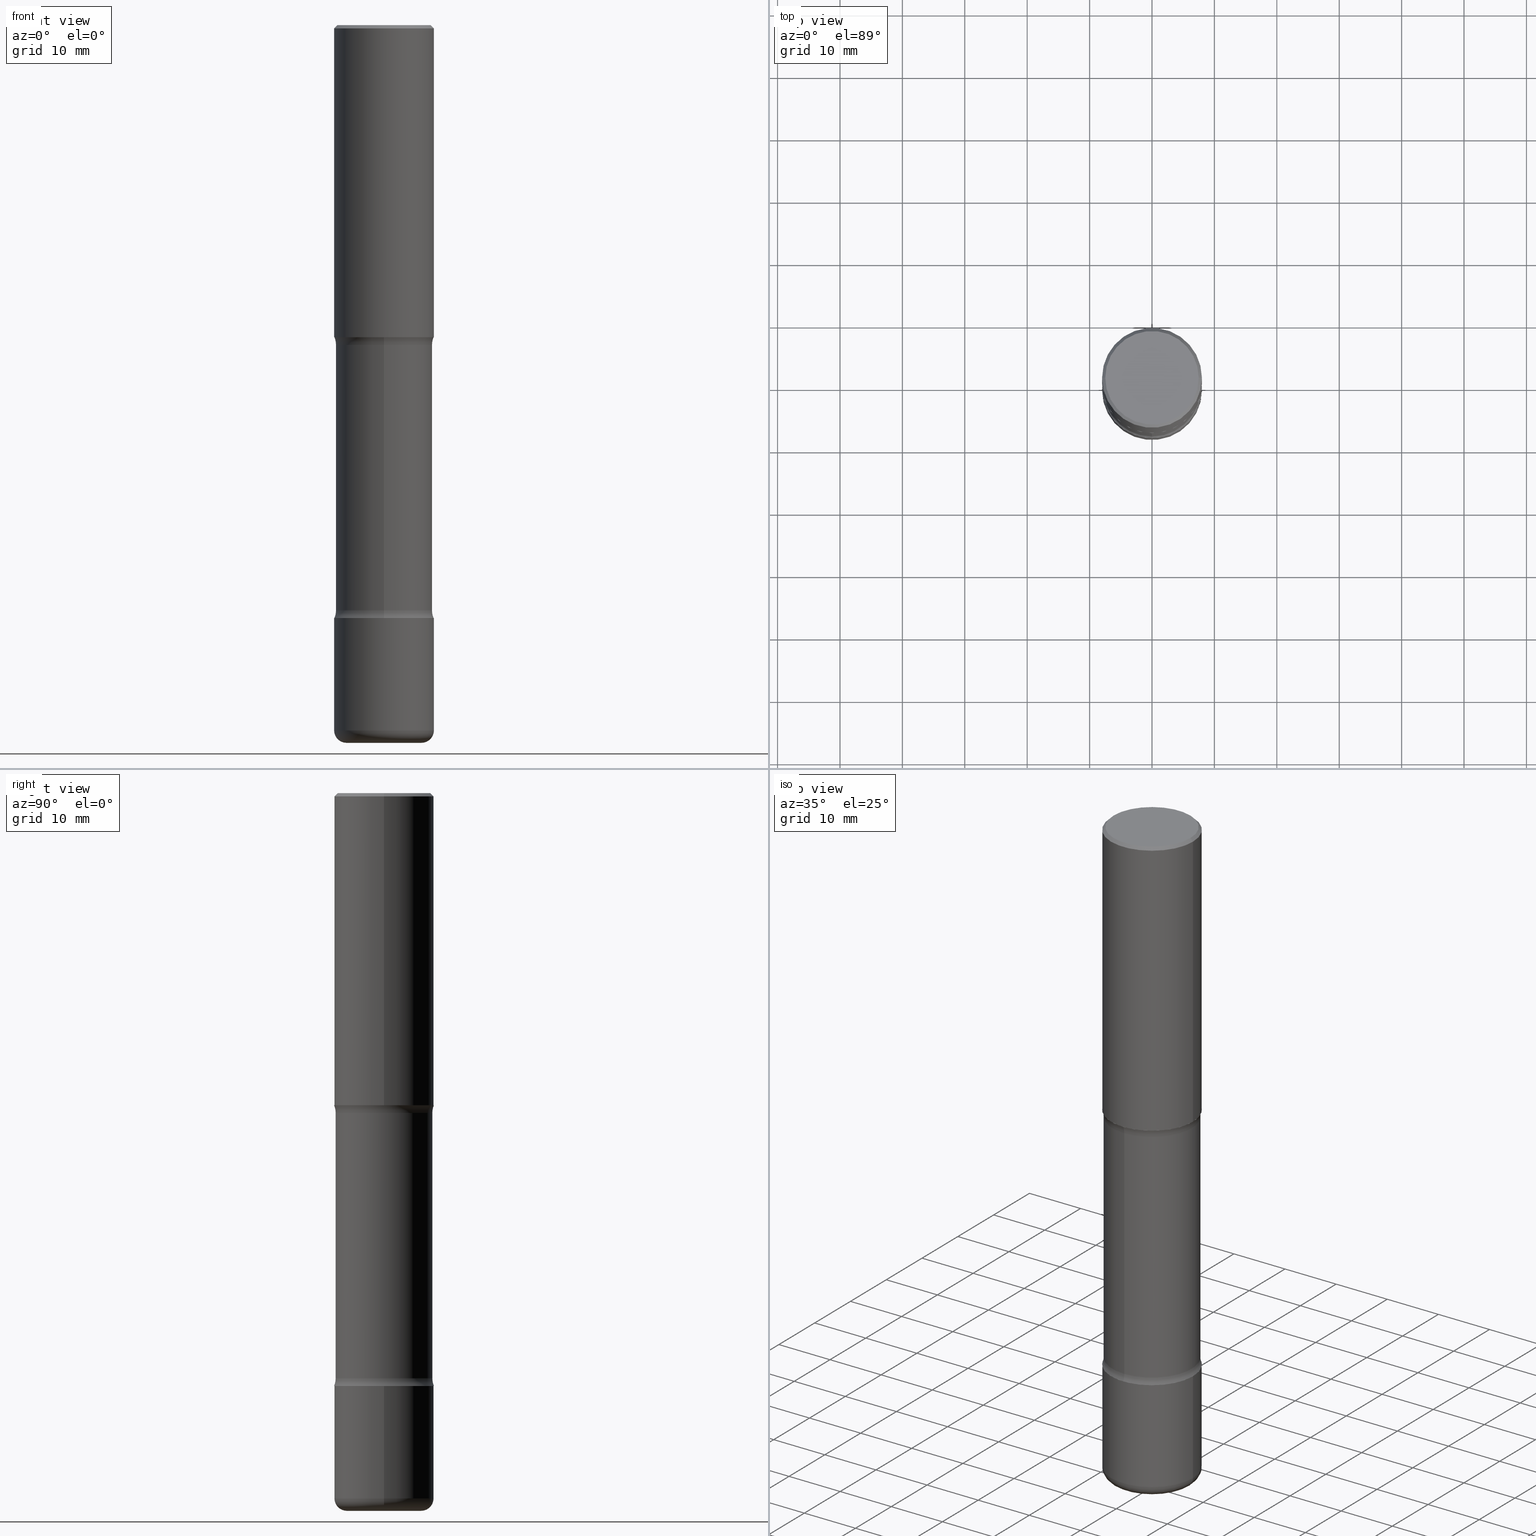
[diagram: canonical four-view strip — front | top / right | iso, engineering-drawing reading convention]
A machine part, canonical four-view strip (front | top / right | iso — engineering-drawing reading convention). The complete STEP part file that produces these views, byte-faithful:
ISO-10303-21;
HEADER;
FILE_DESCRIPTION (( 'STEP AP203' ),
    '1' );
FILE_NAME ('46832.STEP',
    '2024-03-02T05:42:02',
    ( '' ),
    ( '' ),
    'SwSTEP 2.0',
    'SolidWorks 2023',
    '' );
FILE_SCHEMA (( 'CONFIG_CONTROL_DESIGN' ));
ENDSEC;

DATA;
#1 = CARTESIAN_POINT ( 'NONE',  ( 1.087964617183705593E-28, -1.553325132837927055E-14, -4.448900000000000077 ) ) ;
#2 = VECTOR ( 'NONE', #185, 39.37007874015748143 ) ;
#3 =( CONVERSION_BASED_UNIT ( 'INCH', #124 ) LENGTH_UNIT ( ) NAMED_UNIT ( #377 ) );
#4 = PRODUCT_DEFINITION ( 'UNKNOWN', '', #447, #550 ) ;
#5 = DIRECTION ( 'NONE',  ( 6.982962677686264344E-15, 1.000000000000000000, -3.469564049740290403E-15 ) ) ;
#6 = CARTESIAN_POINT ( 'NONE',  ( 0.3149500000000001743, -9.072265110850023156E-15, -1.968500000000000139 ) ) ;
#7 = CARTESIAN_POINT ( 'NONE',  ( -3.131554243005659264E-46, 4.471029511141341874E-32, 1.280553747030123384E-17 ) ) ;
#8 = DIRECTION ( 'NONE',  ( 1.000000000000000000, -6.860497997771530774E-15, 4.841913026395534193E-29 ) ) ;
#9 = VECTOR ( 'NONE', #243, 39.37007874015748143 ) ;
#10 = DIRECTION ( 'NONE',  ( -0.7071067811865471286, 2.468850131082252722E-15, -0.7071067811865479058 ) ) ;
#11 = AXIS2_PLACEMENT_3D ( 'NONE', #146, #221, #319 ) ;
#12 = ORIENTED_EDGE ( 'NONE', *, *, #50, .F. ) ;
#13 = DIRECTION ( 'NONE',  ( 1.000000000000000000, -6.982962677686269866E-15, 0.000000000000000000 ) ) ;
#14 = CARTESIAN_POINT ( 'NONE',  ( -0.3149500000000002853, 2.237854346276437562E-15, -1.549218606675783797E-29 ) ) ;
#15 = PLANE ( 'NONE',  #544 ) ;
#16 = CARTESIAN_POINT ( 'NONE',  ( 9.146542428893650504E-29, -1.305883850354113594E-14, -3.740200000000000635 ) ) ;
#17 = APPROVAL_STATUS ( 'not_yet_approved' ) ;
#18 = EDGE_CURVE ( 'NONE', #405, #267, #196, .T. ) ;
#19 = ORIENTED_EDGE ( 'NONE', *, *, #95, .T. ) ;
#20 = CARTESIAN_POINT ( 'NONE',  ( 4.890937612370289799E-31, -6.982962677686315028E-17, -0.02000000000000006981 ) ) ;
#21 = DIRECTION ( 'NONE',  ( 6.982962677686265922E-15, 1.000000000000000000, -3.400504350852260021E-15 ) ) ;
#22 = TOROIDAL_SURFACE ( 'NONE', #554, 0.4300000000000000488, 0.1250000000000000278 ) ;
#23 = AXIS2_PLACEMENT_3D ( 'NONE', #26, #539, #188 ) ;
#24 = PERSON_AND_ORGANIZATION ( #349, #336 ) ;
#25 = EDGE_LOOP ( 'NONE', ( #156, #88 ) ) ;
#26 = CARTESIAN_POINT ( 'NONE',  ( 4.615694768568605168E-29, -1.954727023296045315E-14, -3.740200000000000635 ) ) ;
#27 = ORIENTED_EDGE ( 'NONE', *, *, #510, .T. ) ;
#28 = CARTESIAN_POINT ( 'NONE',  ( 0.3149499999999998967, -2.230543471175006266E-15, -0.02000000000000006981 ) ) ;
#29 = CIRCLE ( 'NONE', #346, 0.3149500000000002298 ) ;
#30 = SECURITY_CLASSIFICATION ( '', '', #351 ) ;
#31 = EDGE_LOOP ( 'NONE', ( #549, #495, #167, #34 ) ) ;
#32 = CARTESIAN_POINT ( 'NONE',  ( 4.838038961945526824E-29, -7.180209988345925109E-15, -2.017372256956274423 ) ) ;
#33 = ORIENTED_EDGE ( 'NONE', *, *, #246, .T. ) ;
#34 = ORIENTED_EDGE ( 'NONE', *, *, #69, .F. ) ;
#35 = FACE_OUTER_BOUND ( 'NONE', #530, .T. ) ;
#36 = ORIENTED_EDGE ( 'NONE', *, *, #113, .T. ) ;
#37 = EDGE_CURVE ( 'NONE', #429, #267, #220, .T. ) ;
#38 = DIRECTION ( 'NONE',  ( -2.445468806185136597E-29, 3.491481338843145583E-15, 1.000000000000000000 ) ) ;
#39 = EDGE_LOOP ( 'NONE', ( #33, #165, #400, #72 ) ) ;
#40 = CIRCLE ( 'NONE', #117, 0.3049999999999998823 ) ;
#41 = CARTESIAN_POINT ( 'NONE',  ( 2.129803616694422103E-15, 0.3049999999999842282, -4.527600000000001401 ) ) ;
#42 = PLANE ( 'NONE',  #216 ) ;
#43 = CARTESIAN_POINT ( 'NONE',  ( 0.3149500000000003963, -1.773253542371656516E-14, -4.448900000000000077 ) ) ;
#44 = CARTESIAN_POINT ( 'NONE',  ( 0.3149500000000002298, -1.525812259887842581E-14, -3.740200000000000635 ) ) ;
#45 = ADVANCED_FACE ( 'NONE', ( #492 ), #270, .T. ) ;
#46 = DIRECTION ( 'NONE',  ( 6.982962677686265922E-15, 1.000000000000000000, -3.400504350852260021E-15 ) ) ;
#47 = TOROIDAL_SURFACE ( 'NONE', #62, 0.4299999999999999378, 0.1250000000000000000 ) ;
#48 = CIRCLE ( 'NONE', #132, 0.1250000000000000278 ) ;
#49 = DIRECTION ( 'NONE',  ( 1.000000000000000000, -6.982962677686268288E-15, 0.000000000000000000 ) ) ;
#50 = EDGE_CURVE ( 'NONE', #292, #545, #468, .T. ) ;
#51 = SHAPE_DEFINITION_REPRESENTATION ( #57, #241 ) ;
#52 = VERTEX_POINT ( 'NONE', #43 ) ;
#53 = CYLINDRICAL_SURFACE ( 'NONE', #298, 0.3149500000000000077 ) ;
#54 = AXIS2_PLACEMENT_3D ( 'NONE', #339, #133, #441 ) ;
#55 = VERTEX_POINT ( 'NONE', #439 ) ;
#56 = FACE_OUTER_BOUND ( 'NONE', #67, .T. ) ;
#57 = PRODUCT_DEFINITION_SHAPE ( 'NONE', 'NONE',  #4 ) ;
#58 = ORIENTED_EDGE ( 'NONE', *, *, #526, .F. ) ;
#59 = CARTESIAN_POINT ( 'NONE',  ( -0.3149500000000003963, -1.329539698210283299E-14, -4.448900000000000077 ) ) ;
#60 = DIRECTION ( 'NONE',  ( -2.445468806185136597E-29, 3.491481338843145583E-15, 1.000000000000000000 ) ) ;
#61 = ORIENTED_EDGE ( 'NONE', *, *, #457, .F. ) ;
#62 = AXIS2_PLACEMENT_3D ( 'NONE', #369, #275, #317 ) ;
#63 = CLOSED_SHELL ( 'NONE', ( #273, #359, #264, #174, #235, #472 ) ) ;
#64 = VECTOR ( 'NONE', #150, 39.37007874015748143 ) ;
#65 = DIRECTION ( 'NONE',  ( 1.000000000000000000, -6.982962677686264344E-15, 0.000000000000000000 ) ) ;
#66 = APPROVAL_ROLE ( '' ) ;
#67 = EDGE_LOOP ( 'NONE', ( #223, #108 ) ) ;
#68 = DIRECTION ( 'NONE',  ( -1.000000000000000000, 7.105427357600995548E-15, 0.000000000000000000 ) ) ;
#69 = EDGE_CURVE ( 'NONE', #267, #405, #325, .T. ) ;
#70 = DIRECTION ( 'NONE',  ( 0.7071067811865471286, -7.319954787623254468E-15, -0.7071067811865479058 ) ) ;
#71 = FACE_OUTER_BOUND ( 'NONE', #448, .T. ) ;
#72 = ORIENTED_EDGE ( 'NONE', *, *, #335, .F. ) ;
#73 = DIRECTION ( 'NONE',  ( -2.445468806185136597E-29, 3.491481338843145583E-15, 1.000000000000000000 ) ) ;
#74 = CIRCLE ( 'NONE', #397, 0.07870000000000024198 ) ;
#75 = AXIS2_PLACEMENT_3D ( 'NONE', #517, #127, #46 ) ;
#76 = ORIENTED_EDGE ( 'NONE', *, *, #183, .F. ) ;
#77 = MANIFOLD_SOLID_BREP ( 'Body-Move/Copy2[1]', #63 ) ;
#78 = DIRECTION ( 'NONE',  ( -2.445468806185136597E-29, 3.491481338843145583E-15, 1.000000000000000000 ) ) ;
#79 = DIRECTION ( 'NONE',  ( 1.000000000000000000, -6.982962677686268288E-15, 0.000000000000000000 ) ) ;
#80 = EDGE_CURVE ( 'NONE', #204, #511, #288, .T. ) ;
#81 = EDGE_LOOP ( 'NONE', ( #362, #493, #334, #412 ) ) ;
#82 = DIRECTION ( 'NONE',  ( 1.000000000000000000, -6.982962677686267499E-15, 4.876176775795936353E-29 ) ) ;
#83 = MANIFOLD_SOLID_BREP ( 'Body-Move/Copy2[4]', #466 ) ;
#84 = CC_DESIGN_PERSON_AND_ORGANIZATION_ASSIGNMENT ( #281, #225, ( #447 ) ) ;
#85 = DIRECTION ( 'NONE',  ( 1.000000000000000000, -6.982962677686269866E-15, 0.000000000000000000 ) ) ;
#86 = CIRCLE ( 'NONE', #303, 0.1250000000000000000 ) ;
#87 = CYLINDRICAL_SURFACE ( 'NONE', #476, 0.3049999999999999378 ) ;
#88 = ORIENTED_EDGE ( 'NONE', *, *, #69, .T. ) ;
#89 = DIRECTION ( 'NONE',  ( 2.508997697352003204E-29, -3.400504350852260021E-15, -1.000000000000000000 ) ) ;
#90 = LINE ( 'NONE', #41, #164 ) ;
#91 = CC_DESIGN_APPROVAL ( #426, ( #447 ) ) ;
#92 = EDGE_CURVE ( 'NONE', #329, #204, #86, .T. ) ;
#93 = COORDINATED_UNIVERSAL_TIME_OFFSET ( 5, 0, .BEHIND. ) ;
#94 = CARTESIAN_POINT ( 'NONE',  ( 3.002673951405142333E-15, 0.4299999999999927769, -2.017372256956275756 ) ) ;
#95 = EDGE_CURVE ( 'NONE', #187, #429, #74, .T. ) ;
#96 = EDGE_LOOP ( 'NONE', ( #282, #381, #181, #445 ) ) ;
#97 = ORIENTED_EDGE ( 'NONE', *, *, #382, .T. ) ;
#98 = PRODUCT_RELATED_PRODUCT_CATEGORY ( 'detail', '', ( #147 ) ) ;
#99 = DIRECTION ( 'NONE',  ( -2.445468806185136597E-29, 3.491481338843145583E-15, 1.000000000000000000 ) ) ;
#100 = EDGE_CURVE ( 'NONE', #511, #204, #430, .T. ) ;
#101 = CIRCLE ( 'NONE', #473, 0.07870000000000024198 ) ;
#102 = APPROVAL_PERSON_ORGANIZATION ( #144, #368, #66 ) ;
#103 = ORIENTED_EDGE ( 'NONE', *, *, #212, .F. ) ;
#104 = DIRECTION ( 'NONE',  ( -2.445468806185136597E-29, 3.491481338843145583E-15, 1.000000000000000000 ) ) ;
#105 = CARTESIAN_POINT ( 'NONE',  ( 0.3149499999999998967, -2.230543471175006266E-15, -0.02000000000000006981 ) ) ;
#106 = PERSON_AND_ORGANIZATION_ROLE ( 'creator' ) ;
#107 = APPROVAL_ROLE ( '' ) ;
#108 = ORIENTED_EDGE ( 'NONE', *, *, #393, .T. ) ;
#109 = FACE_OUTER_BOUND ( 'NONE', #360, .T. ) ;
#110 = CARTESIAN_POINT ( 'NONE',  ( 9.027026849019219293E-29, -1.288820193039116093E-14, -3.691327743043727239 ) ) ;
#111 = VECTOR ( 'NONE', #70, 39.37007874015748143 ) ;
#112 = CIRCLE ( 'NONE', #143, 0.3149500000000002298 ) ;
#113 = EDGE_CURVE ( 'NONE', #507, #52, #101, .T. ) ;
#114 = DIRECTION ( 'NONE',  ( 2.508997697352003204E-29, -3.400504350852260021E-15, -1.000000000000000000 ) ) ;
#115 = ORIENTED_EDGE ( 'NONE', *, *, #457, .T. ) ;
#116 = DIRECTION ( 'NONE',  ( -2.445468806185136597E-29, 3.491481338843145583E-15, 1.000000000000000000 ) ) ;
#117 = AXIS2_PLACEMENT_3D ( 'NONE', #560, #211, #173 ) ;
#118 = ORIENTED_EDGE ( 'NONE', *, *, #95, .F. ) ;
#119 = CARTESIAN_POINT ( 'NONE',  ( 0.3149500000000000077, -2.199284095337289871E-15, 1.535751875536930130E-29 ) ) ;
#120 = DIRECTION ( 'NONE',  ( 2.508997697352003204E-29, -3.400504350852260021E-15, -1.000000000000000000 ) ) ;
#121 = AXIS2_PLACEMENT_3D ( 'NONE', #230, #485, #529 ) ;
#122 = ADVANCED_FACE ( 'NONE', ( #293 ), #414, .T. ) ;
#123 =( GEOMETRIC_REPRESENTATION_CONTEXT ( 3 ) GLOBAL_UNCERTAINTY_ASSIGNED_CONTEXT ( ( #494 ) ) GLOBAL_UNIT_ASSIGNED_CONTEXT ( ( #3, #172, #434 ) ) REPRESENTATION_CONTEXT ( 'NONE', 'WORKASPACE' ) );
#124 = LENGTH_MEASURE_WITH_UNIT ( LENGTH_MEASURE( 0.02539999999999999897 ), #365 );
#125 = CC_DESIGN_PERSON_AND_ORGANIZATION_ASSIGNMENT ( #175, #106, ( #4 ) ) ;
#126 = CARTESIAN_POINT ( 'NONE',  ( 2.129803616694359388E-15, 0.3049999999999927769, -2.017372256956275756 ) ) ;
#127 = DIRECTION ( 'NONE',  ( 2.508997697352002923E-29, -3.400504350852260021E-15, -1.000000000000000000 ) ) ;
#128 = ADVANCED_FACE ( 'NONE', ( #71 ), #22, .F. ) ;
#129 = AXIS2_PLACEMENT_3D ( 'NONE', #323, #162, #85 ) ;
#130 = AXIS2_PLACEMENT_3D ( 'NONE', #1, #475, #49 ) ;
#131 = PLANE ( 'NONE',  #75 ) ;
#132 = AXIS2_PLACEMENT_3D ( 'NONE', #265, #446, #404 ) ;
#133 = DIRECTION ( 'NONE',  ( -2.445468806185136597E-29, 3.491481338843145583E-15, 1.000000000000000000 ) ) ;
#134 = CARTESIAN_POINT ( 'NONE',  ( -0.2362500000000003209, -1.385459411514603336E-14, -4.448900000000000077 ) ) ;
#135 = ORIENTED_EDGE ( 'NONE', *, *, #283, .T. ) ;
#136 = CARTESIAN_POINT ( 'NONE',  ( -0.3149500000000001743, -1.233550974868359743E-15, -1.968500000000000139 ) ) ;
#137 = VERTEX_POINT ( 'NONE', #28 ) ;
#138 = DIRECTION ( 'NONE',  ( 6.982962677686266711E-15, 1.000000000000000000, -3.582751467100674095E-15 ) ) ;
#139 = DIRECTION ( 'NONE',  ( 1.000000000000000000, -6.982962677686263555E-15, 4.883557194083111780E-29 ) ) ;
#140 = ORIENTED_EDGE ( 'NONE', *, *, #169, .F. ) ;
#141 = DIRECTION ( 'NONE',  ( 6.982962677686266711E-15, 1.000000000000000000, -3.582751467100673306E-15 ) ) ;
#142 = AXIS2_PLACEMENT_3D ( 'NONE', #538, #403, #277 ) ;
#143 = AXIS2_PLACEMENT_3D ( 'NONE', #394, #89, #5 ) ;
#144 = PERSON_AND_ORGANIZATION ( #349, #336 ) ;
#145 = EDGE_LOOP ( 'NONE', ( #76, #58 ) ) ;
#146 = CARTESIAN_POINT ( 'NONE',  ( 2.059624841783562880E-15, 0.2949499999999998234, -1.023409652156634547E-15 ) ) ;
#147 = PRODUCT ( '46832', '46832', '', ( #296 ) ) ;
#148 = APPROVAL_STATUS ( 'not_yet_approved' ) ;
#149 = ORIENTED_EDGE ( 'NONE', *, *, #254, .F. ) ;
#150 = DIRECTION ( 'NONE',  ( -2.445468806185136877E-29, 3.491481338843145188E-15, 1.000000000000000000 ) ) ;
#151 = ADVANCED_FACE ( 'NONE', ( #152 ), #361, .F. ) ;
#152 = FACE_OUTER_BOUND ( 'NONE', #208, .T. ) ;
#153 = CC_DESIGN_DATE_AND_TIME_ASSIGNMENT ( #482, #537, ( #30 ) ) ;
#154 = COORDINATED_UNIVERSAL_TIME_OFFSET ( 5, 0, .BEHIND. ) ;
#155 = ORIENTED_EDGE ( 'NONE', *, *, #436, .T. ) ;
#156 = ORIENTED_EDGE ( 'NONE', *, *, #18, .T. ) ;
#157 = ADVANCED_FACE ( 'NONE', ( #320 ), #47, .F. ) ;
#158 = CARTESIAN_POINT ( 'NONE',  ( 1.107210456688382522E-28, -1.580803090974622705E-14, -4.527600000000000513 ) ) ;
#159 = LINE ( 'NONE', #119, #455 ) ;
#160 = ORIENTED_EDGE ( 'NONE', *, *, #294, .T. ) ;
#161 = APPROVAL ( #477, 'UNSPECIFIED' ) ;
#162 = DIRECTION ( 'NONE',  ( -2.445468806185136597E-29, 3.491481338843145583E-15, 1.000000000000000000 ) ) ;
#163 = AXIS2_PLACEMENT_3D ( 'NONE', #16, #60, #65 ) ;
#164 = VECTOR ( 'NONE', #120, 39.37007874015748143 ) ;
#165 = ORIENTED_EDGE ( 'NONE', *, *, #37, .T. ) ;
#166 = CYLINDRICAL_SURFACE ( 'NONE', #54, 0.3149500000000002853 ) ;
#167 = ORIENTED_EDGE ( 'NONE', *, *, #335, .T. ) ;
#168 = DIRECTION ( 'NONE',  ( -1.000000000000000000, 6.982962677686265922E-15, 0.000000000000000000 ) ) ;
#169 = EDGE_CURVE ( 'NONE', #285, #137, #454, .T. ) ;
#170 = FACE_OUTER_BOUND ( 'NONE', #96, .T. ) ;
#171 = CIRCLE ( 'NONE', #481, 0.3049999999999998823 ) ;
#172 =( NAMED_UNIT ( * ) PLANE_ANGLE_UNIT ( ) SI_UNIT ( $, .RADIAN. ) );
#173 = DIRECTION ( 'NONE',  ( 6.982962677686266711E-15, 1.000000000000000000, -3.582751467100674095E-15 ) ) ;
#174 = ADVANCED_FACE ( 'NONE', ( #540 ), #442, .T. ) ;
#175 = PERSON_AND_ORGANIZATION ( #349, #336 ) ;
#176 = DIRECTION ( 'NONE',  ( 2.445468806185136597E-29, -3.491481338843145583E-15, -1.000000000000000000 ) ) ;
#177 = CC_DESIGN_PERSON_AND_ORGANIZATION_ASSIGNMENT ( #543, #233, ( #447 ) ) ;
#178 = CARTESIAN_POINT ( 'NONE',  ( -0.3149499999999998967, 2.129454468560425784E-15, -0.02000000000000006981 ) ) ;
#179 = CIRCLE ( 'NONE', #480, 0.3149499999999998967 ) ;
#180 = CIRCLE ( 'NONE', #385, 0.3149499999999998967 ) ;
#181 = ORIENTED_EDGE ( 'NONE', *, *, #463, .T. ) ;
#182 = CARTESIAN_POINT ( 'NONE',  ( 9.023922048725964423E-29, -1.289264818112535948E-14, -3.691327743043727239 ) ) ;
#183 = EDGE_CURVE ( 'NONE', #280, #484, #189, .T. ) ;
#184 = DIRECTION ( 'NONE',  ( -6.982962677686266711E-15, -1.000000000000000000, 0.000000000000000000 ) ) ;
#185 = DIRECTION ( 'NONE',  ( -2.445468806185136877E-29, 3.491481338843145188E-15, 1.000000000000000000 ) ) ;
#186 = COORDINATED_UNIVERSAL_TIME_OFFSET ( 5, 0, .BEHIND. ) ;
#187 = VERTEX_POINT ( 'NONE', #330 ) ;
#188 = DIRECTION ( 'NONE',  ( -6.982962677686265922E-15, -1.000000000000000000, 3.400504350852260021E-15 ) ) ;
#189 = CIRCLE ( 'NONE', #129, 0.3149500000000001743 ) ;
#190 = LOCAL_TIME ( 0, 42, 2.000000000000000000, #154 ) ;
#191 = PERSON_AND_ORGANIZATION_ROLE ( 'classification_officer' ) ;
#192 = EDGE_LOOP ( 'NONE', ( #356, #19, #420, #486 ) ) ;
#193 = LINE ( 'NONE', #309, #64 ) ;
#194 = ORIENTED_EDGE ( 'NONE', *, *, #382, .F. ) ;
#195 = DIRECTION ( 'NONE',  ( -1.000000000000000000, 6.982962677686265922E-15, -4.883557194083112340E-29 ) ) ;
#196 = CIRCLE ( 'NONE', #142, 0.3149500000000002298 ) ;
#197 = EDGE_CURVE ( 'NONE', #408, #137, #179, .T. ) ;
#198 = DIRECTION ( 'NONE',  ( 2.508997697352003204E-29, -3.400504350852260021E-15, -1.000000000000000000 ) ) ;
#199 = EDGE_LOOP ( 'NONE', ( #12, #115, #308, #227 ) ) ;
#200 = DIRECTION ( 'NONE',  ( 2.508997697352003204E-29, -3.400504350852260021E-15, -1.000000000000000000 ) ) ;
#201 = DIRECTION ( 'NONE',  ( 2.508997697352003204E-29, -3.400504350852260021E-15, -1.000000000000000000 ) ) ;
#202 = VERTEX_POINT ( 'NONE', #502 ) ;
#203 = DIRECTION ( 'NONE',  ( 1.000000000000000000, -6.982962677686268288E-15, 0.000000000000000000 ) ) ;
#204 = VERTEX_POINT ( 'NONE', #248 ) ;
#205 = DIRECTION ( 'NONE',  ( -1.000000000000000000, 6.982962677686265922E-15, -4.876176775795935793E-29 ) ) ;
#206 = AXIS2_PLACEMENT_3D ( 'NONE', #503, #116, #79 ) ;
#207 = AXIS2_PLACEMENT_3D ( 'NONE', #271, #8, #489 ) ;
#208 = EDGE_LOOP ( 'NONE', ( #194, #155, #558, #527 ) ) ;
#209 = FACE_OUTER_BOUND ( 'NONE', #199, .T. ) ;
#210 = ADVANCED_FACE ( 'NONE', ( #290 ), #506, .F. ) ;
#211 = DIRECTION ( 'NONE',  ( 2.508997697352003204E-29, -3.400504350852260021E-15, -1.000000000000000000 ) ) ;
#212 = EDGE_CURVE ( 'NONE', #280, #137, #159, .T. ) ;
#213 = AXIS2_PLACEMENT_3D ( 'NONE', #478, #512, #168 ) ;
#214 = DIRECTION ( 'NONE',  ( 1.000000000000000000, -6.860497997771530774E-15, 4.841913026395534193E-29 ) ) ;
#215 = LINE ( 'NONE', #300, #458 ) ;
#216 = AXIS2_PLACEMENT_3D ( 'NONE', #244, #386, #205 ) ;
#217 = EDGE_LOOP ( 'NONE', ( #357, #424, #234, #374 ) ) ;
#218 = CIRCLE ( 'NONE', #207, 0.1250000000000000278 ) ;
#219 = CARTESIAN_POINT ( 'NONE',  ( 0.000000000000000000, 0.000000000000000000, 0.000000000000000000 ) ) ;
#220 = LINE ( 'NONE', #14, #2 ) ;
#221 = DIRECTION ( 'NONE',  ( 2.438088387897960049E-29, -3.491481338843145188E-15, -1.000000000000000000 ) ) ;
#222 = CC_DESIGN_PERSON_AND_ORGANIZATION_ASSIGNMENT ( #559, #341, ( #147 ) ) ;
#223 = ORIENTED_EDGE ( 'NONE', *, *, #328, .T. ) ;
#224 = CARTESIAN_POINT ( 'NONE',  ( 4.813905344975441835E-29, -6.872981015512731707E-15, -1.968500000000000139 ) ) ;
#225 = PERSON_AND_ORGANIZATION_ROLE ( 'design_supplier' ) ;
#226 = ADVANCED_FACE ( 'NONE', ( #239 ), #259, .F. ) ;
#227 = ORIENTED_EDGE ( 'NONE', *, *, #332, .F. ) ;
#228 = CIRCLE ( 'NONE', #206, 0.3149500000000003408 ) ;
#229 = CC_DESIGN_APPROVAL ( #161, ( #4 ) ) ;
#230 = CARTESIAN_POINT ( 'NONE',  ( 4.701351208495103638E-29, -7.034164945136184012E-15, -1.968500000000000139 ) ) ;
#231 = COORDINATED_UNIVERSAL_TIME_OFFSET ( 5, 0, .BEHIND. ) ;
#232 = ORIENTED_EDGE ( 'NONE', *, *, #197, .T. ) ;
#233 = PERSON_AND_ORGANIZATION_ROLE ( 'creator' ) ;
#234 = ORIENTED_EDGE ( 'NONE', *, *, #212, .T. ) ;
#235 = ADVANCED_FACE ( 'NONE', ( #548 ), #467, .T. ) ;
#236 = APPROVAL_DATE_TIME ( #497, #161 ) ;
#237 = ORIENTED_EDGE ( 'NONE', *, *, #100, .T. ) ;
#238 = CIRCLE ( 'NONE', #313, 0.2362500000000003209 ) ;
#239 = FACE_OUTER_BOUND ( 'NONE', #501, .T. ) ;
#240 = CARTESIAN_POINT ( 'NONE',  ( 9.027026849019219293E-29, -1.288820193039116093E-14, -3.691327743043727239 ) ) ;
#241 = ADVANCED_BREP_SHAPE_REPRESENTATION ( '46832', ( #77, #257, #83, #268 ), #123 ) ;
#242 = CARTESIAN_POINT ( 'NONE',  ( 1.107210456688382522E-28, -1.580803090974622705E-14, -4.527600000000000513 ) ) ;
#243 = DIRECTION ( 'NONE',  ( 2.508997697352003204E-29, -3.400504350852260021E-15, -1.000000000000000000 ) ) ;
#244 = CARTESIAN_POINT ( 'NONE',  ( 3.760335250554058261E-29, -2.627890073079537075E-14, -4.527600000000000513 ) ) ;
#245 = EDGE_LOOP ( 'NONE', ( #118, #310, #36, #295 ) ) ;
#246 = EDGE_CURVE ( 'NONE', #52, #429, #228, .T. ) ;
#247 = CARTESIAN_POINT ( 'NONE',  ( 0.000000000000000000, 0.000000000000000000, 0.000000000000000000 ) ) ;
#248 = CARTESIAN_POINT ( 'NONE',  ( 2.199284095337339175E-15, 0.3149499999999932909, -1.968500000000001249 ) ) ;
#249 = CIRCLE ( 'NONE', #496, 0.2362500000000003209 ) ;
#250 = AXIS2_PLACEMENT_3D ( 'NONE', #224, #104, #13 ) ;
#251 = CC_DESIGN_PERSON_AND_ORGANIZATION_ASSIGNMENT ( #415, #191, ( #30 ) ) ;
#252 = CARTESIAN_POINT ( 'NONE',  ( 1.112212721578861617E-28, -1.573639562940220266E-14, -4.527600000000000513 ) ) ;
#253 = CARTESIAN_POINT ( 'NONE',  ( 4.823971588662791399E-29, -7.200355267551965208E-15, -2.017372256956274423 ) ) ;
#254 = EDGE_CURVE ( 'NONE', #507, #187, #249, .T. ) ;
#255 = CARTESIAN_POINT ( 'NONE',  ( -2.126582866859184041E-15, -0.3050000000000072098, -2.017372256956273535 ) ) ;
#256 = DIRECTION ( 'NONE',  ( 2.508997697352003204E-29, -3.400504350852260021E-15, -1.000000000000000000 ) ) ;
#257 = MANIFOLD_SOLID_BREP ( 'Body-Move/Copy2[2]', #522 ) ;
#258 = DIRECTION ( 'NONE',  ( -2.445468806185136597E-29, 3.491481338843145583E-15, 1.000000000000000000 ) ) ;
#259 = TOROIDAL_SURFACE ( 'NONE', #391, 0.4299999999999999378, 0.1250000000000000000 ) ;
#260 = CIRCLE ( 'NONE', #384, 0.2949499999999998234 ) ;
#261 = DIRECTION ( 'NONE',  ( 6.982962677686266711E-15, 1.000000000000000000, -3.582751467100673306E-15 ) ) ;
#262 = APPROVAL_DATE_TIME ( #370, #368 ) ;
#263 = ORIENTED_EDGE ( 'NONE', *, *, #353, .T. ) ;
#264 = ADVANCED_FACE ( 'NONE', ( #35 ), #42, .T. ) ;
#265 = CARTESIAN_POINT ( 'NONE',  ( 3.002673951405185326E-15, 0.4299999999999871703, -3.691327743043729015 ) ) ;
#266 = AXIS2_PLACEMENT_3D ( 'NONE', #110, #114, #21 ) ;
#267 = VERTEX_POINT ( 'NONE', #509 ) ;
#268 = AXIS2_PLACEMENT_3D ( 'NONE', #247, #508, #431 ) ;
#269 = DIRECTION ( 'NONE',  ( 2.508997697352003204E-29, -3.400504350852260021E-15, -1.000000000000000000 ) ) ;
#270 = CYLINDRICAL_SURFACE ( 'NONE', #532, 0.3049999999999999378 ) ;
#271 = CARTESIAN_POINT ( 'NONE',  ( -2.950014139041668531E-15, -0.4300000000000129829, -3.691327743043725906 ) ) ;
#272 = CARTESIAN_POINT ( 'NONE',  ( 1.087964617183705593E-28, -1.553325132837927055E-14, -4.448900000000000077 ) ) ;
#273 = ADVANCED_FACE ( 'NONE', ( #557 ), #166, .T. ) ;
#274 = VERTEX_POINT ( 'NONE', #345 ) ;
#275 = DIRECTION ( 'NONE',  ( 2.508997697352003204E-29, -3.400504350852260021E-15, -1.000000000000000000 ) ) ;
#276 = DATE_AND_TIME ( #395, #190 ) ;
#277 = DIRECTION ( 'NONE',  ( 1.000000000000000000, -6.982962677686264344E-15, 0.000000000000000000 ) ) ;
#278 = AXIS2_PLACEMENT_3D ( 'NONE', #541, #372, #291 ) ;
#279 = CALENDAR_DATE ( 2024, 2, 3 ) ;
#280 = VERTEX_POINT ( 'NONE', #6 ) ;
#281 = PERSON_AND_ORGANIZATION ( #349, #336 ) ;
#282 = ORIENTED_EDGE ( 'NONE', *, *, #393, .F. ) ;
#283 = EDGE_CURVE ( 'NONE', #292, #511, #513, .T. ) ;
#284 = APPLICATION_CONTEXT ( 'configuration controlled 3d designs of mechanical parts and assemblies' ) ;
#285 = VERTEX_POINT ( 'NONE', #479 ) ;
#286 = DIRECTION ( 'NONE',  ( -2.445468806185136597E-29, 3.491481338843145583E-15, 1.000000000000000000 ) ) ;
#287 = DIRECTION ( 'NONE',  ( 6.982962677686266711E-15, 1.000000000000000000, -3.582751467100674095E-15 ) ) ;
#288 = CIRCLE ( 'NONE', #121, 0.3149500000000003408 ) ;
#289 = LOCAL_TIME ( 0, 42, 2.000000000000000000, #231 ) ;
#290 = FACE_OUTER_BOUND ( 'NONE', #145, .T. ) ;
#291 = DIRECTION ( 'NONE',  ( 6.982962677686265922E-15, 1.000000000000000000, -3.469564049740289220E-15 ) ) ;
#292 = VERTEX_POINT ( 'NONE', #255 ) ;
#293 = FACE_OUTER_BOUND ( 'NONE', #217, .T. ) ;
#294 = EDGE_CURVE ( 'NONE', #202, #408, #390, .T. ) ;
#295 = ORIENTED_EDGE ( 'NONE', *, *, #371, .F. ) ;
#296 = MECHANICAL_CONTEXT ( 'NONE', #284, 'mechanical' ) ;
#297 = CARTESIAN_POINT ( 'NONE',  ( 1.087964617183705593E-28, -1.553325132837927055E-14, -4.448900000000000077 ) ) ;
#298 = AXIS2_PLACEMENT_3D ( 'NONE', #219, #99, #401 ) ;
#299 = DIRECTION ( 'NONE',  ( -2.445468806185136597E-29, 3.491481338843145583E-15, 1.000000000000000000 ) ) ;
#300 = CARTESIAN_POINT ( 'NONE',  ( 0.3149500000000002853, -2.199284095337291843E-15, 1.535751875536931531E-29 ) ) ;
#301 = CARTESIAN_POINT ( 'NONE',  ( -0.3149499999999998967, 2.129454468560425784E-15, -0.02000000000000006981 ) ) ;
#302 = ORIENTED_EDGE ( 'NONE', *, *, #436, .F. ) ;
#303 = AXIS2_PLACEMENT_3D ( 'NONE', #94, #195, #184 ) ;
#304 = AXIS2_PLACEMENT_3D ( 'NONE', #410, #525, #141 ) ;
#305 = CARTESIAN_POINT ( 'NONE',  ( 4.890937612370289799E-31, -6.982962677686315028E-17, -0.02000000000000006981 ) ) ;
#306 = CARTESIAN_POINT ( 'NONE',  ( -2.950014139041709158E-15, -0.4300000000000070988, -2.017372256956273091 ) ) ;
#307 = EDGE_CURVE ( 'NONE', #546, #55, #29, .T. ) ;
#308 = ORIENTED_EDGE ( 'NONE', *, *, #413, .T. ) ;
#309 = CARTESIAN_POINT ( 'NONE',  ( -0.3149500000000000077, 2.237854346276435590E-15, -1.549218606675782676E-29 ) ) ;
#310 = ORIENTED_EDGE ( 'NONE', *, *, #316, .T. ) ;
#311 = CARTESIAN_POINT ( 'NONE',  ( 2.199284095337382168E-15, 0.3149499999999870181, -3.740200000000001967 ) ) ;
#312 = ORIENTED_EDGE ( 'NONE', *, *, #50, .T. ) ;
#313 = AXIS2_PLACEMENT_3D ( 'NONE', #158, #78, #203 ) ;
#314 = DIRECTION ( 'NONE',  ( -1.000000000000000000, 6.982962677686265922E-15, -4.876176775795935793E-29 ) ) ;
#315 = CC_DESIGN_APPROVAL ( #368, ( #30 ) ) ;
#316 = EDGE_CURVE ( 'NONE', #187, #507, #238, .T. ) ;
#317 = DIRECTION ( 'NONE',  ( 6.982962677686265922E-15, 1.000000000000000000, -3.400504350852260021E-15 ) ) ;
#318 = EDGE_LOOP ( 'NONE', ( #140, #465, #160, #232 ) ) ;
#319 = DIRECTION ( 'NONE',  ( -1.000000000000000000, 6.982962677686265922E-15, -4.876176775795935793E-29 ) ) ;
#320 = FACE_OUTER_BOUND ( 'NONE', #81, .T. ) ;
#321 = ORIENTED_EDGE ( 'NONE', *, *, #183, .T. ) ;
#322 = DIRECTION ( 'NONE',  ( 6.982962677686266711E-15, 1.000000000000000000, -3.582751467100674095E-15 ) ) ;
#323 = CARTESIAN_POINT ( 'NONE',  ( 4.813905344975441835E-29, -6.872981015512731707E-15, -1.968500000000000139 ) ) ;
#324 = DIRECTION ( 'NONE',  ( 1.000000000000000000, -6.982962677686266711E-15, 4.876176775795936353E-29 ) ) ;
#325 = CIRCLE ( 'NONE', #163, 0.3149500000000002298 ) ;
#326 = CONICAL_SURFACE ( 'NONE', #213, 0.3149499999999998967, 0.7853981633974477239 ) ;
#327 = CC_DESIGN_SECURITY_CLASSIFICATION ( #30, ( #447 ) ) ;
#328 = EDGE_CURVE ( 'NONE', #202, #285, #260, .T. ) ;
#329 = VERTEX_POINT ( 'NONE', #126 ) ;
#330 = CARTESIAN_POINT ( 'NONE',  ( -0.2362500000000003209, -1.371238533930791063E-14, -4.527600000000000513 ) ) ;
#331 = EDGE_LOOP ( 'NONE', ( #469, #340 ) ) ;
#332 = EDGE_CURVE ( 'NONE', #545, #274, #40, .T. ) ;
#333 = CARTESIAN_POINT ( 'NONE',  ( 0.000000000000000000, 0.000000000000000000, 0.000000000000000000 ) ) ;
#334 = ORIENTED_EDGE ( 'NONE', *, *, #92, .T. ) ;
#335 = EDGE_CURVE ( 'NONE', #52, #405, #215, .T. ) ;
#336 = ORGANIZATION ( 'UNSPECIFIED', 'UNSPECIFIED', '' ) ;
#337 = ORIENTED_EDGE ( 'NONE', *, *, #307, .T. ) ;
#338 = APPLICATION_PROTOCOL_DEFINITION ( 'international standard', 'config_control_design', 1994, #284 ) ;
#339 = CARTESIAN_POINT ( 'NONE',  ( 0.000000000000000000, 0.000000000000000000, 0.000000000000000000 ) ) ;
#340 = ORIENTED_EDGE ( 'NONE', *, *, #100, .F. ) ;
#341 = PERSON_AND_ORGANIZATION_ROLE ( 'design_owner' ) ;
#342 = DIRECTION ( 'NONE',  ( 1.000000000000000000, -6.982962677686267499E-15, 4.876053491004737710E-29 ) ) ;
#343 = ADVANCED_FACE ( 'NONE', ( #435 ), #326, .T. ) ;
#344 = DIRECTION ( 'NONE',  ( 2.508997697352003204E-29, -3.400504350852260021E-15, -1.000000000000000000 ) ) ;
#345 = CARTESIAN_POINT ( 'NONE',  ( 2.129803616694400804E-15, 0.3049999999999870037, -3.691327743043728571 ) ) ;
#346 = AXIS2_PLACEMENT_3D ( 'NONE', #462, #200, #547 ) ;
#347 = LOCAL_TIME ( 0, 42, 2.000000000000000000, #366 ) ;
#348 = DIRECTION ( 'NONE',  ( 1.000000000000000000, -6.982962677686263555E-15, 4.883557194083111780E-29 ) ) ;
#349 = PERSON ( 'UNSPECIFIED', 'UNSPECIFIED', 'UNSPECIFIED', ('UNSPECIFIED'), ('UNSPECIFIED'), ('UNSPECIFIED') ) ;
#350 = DIRECTION ( 'NONE',  ( 1.000000000000000000, -6.982962677686267499E-15, 4.876053491004737710E-29 ) ) ;
#351 = SECURITY_CLASSIFICATION_LEVEL ( 'unclassified' ) ;
#352 = DIRECTION ( 'NONE',  ( -1.000000000000000000, 6.982962677686265922E-15, 0.000000000000000000 ) ) ;
#353 = EDGE_CURVE ( 'NONE', #329, #292, #398, .T. ) ;
#354 = AXIS2_PLACEMENT_3D ( 'NONE', #333, #470, #82 ) ;
#355 = AXIS2_PLACEMENT_3D ( 'NONE', #297, #299, #348 ) ;
#356 = ORIENTED_EDGE ( 'NONE', *, *, #254, .T. ) ;
#357 = ORIENTED_EDGE ( 'NONE', *, *, #500, .F. ) ;
#358 = DIRECTION ( 'NONE',  ( 1.000000000000000000, -6.982962677686265922E-15, 0.000000000000000000 ) ) ;
#359 = ADVANCED_FACE ( 'NONE', ( #392 ), #523, .T. ) ;
#360 = EDGE_LOOP ( 'NONE', ( #337, #97 ) ) ;
#361 = TOROIDAL_SURFACE ( 'NONE', #266, 0.4300000000000000488, 0.1250000000000000278 ) ;
#362 = ORIENTED_EDGE ( 'NONE', *, *, #283, .F. ) ;
#363 = APPROVAL_PERSON_ORGANIZATION ( #24, #426, #419 ) ;
#364 = FACE_OUTER_BOUND ( 'NONE', #387, .T. ) ;
#365 =( LENGTH_UNIT ( ) NAMED_UNIT ( * ) SI_UNIT ( $, .METRE. ) );
#366 = COORDINATED_UNIVERSAL_TIME_OFFSET ( 5, 0, .BEHIND. ) ;
#367 = ORIENTED_EDGE ( 'NONE', *, *, #413, .F. ) ;
#368 = APPROVAL ( #148, 'UNSPECIFIED' ) ;
#369 = CARTESIAN_POINT ( 'NONE',  ( 4.838038961945526824E-29, -7.180209988345925109E-15, -2.017372256956274423 ) ) ;
#370 = DATE_AND_TIME ( #411, #421 ) ;
#371 = EDGE_CURVE ( 'NONE', #429, #52, #443, .T. ) ;
#372 = DIRECTION ( 'NONE',  ( 2.508997697352003204E-29, -3.400504350852260021E-15, -1.000000000000000000 ) ) ;
#373 = CALENDAR_DATE ( 2024, 2, 3 ) ;
#374 = ORIENTED_EDGE ( 'NONE', *, *, #197, .F. ) ;
#375 = VECTOR ( 'NONE', #10, 39.37007874015748143 ) ;
#376 = CONICAL_SURFACE ( 'NONE', #409, 0.3149499999999998967, 0.7853981633974477239 ) ;
#377 = DIMENSIONAL_EXPONENTS ( 1.000000000000000000, 0.000000000000000000, 0.000000000000000000, 0.000000000000000000, 0.000000000000000000, 0.000000000000000000, 0.000000000000000000 ) ;
#378 = DIRECTION ( 'NONE',  ( 6.982962677686265922E-15, 1.000000000000000000, -3.400504350852260021E-15 ) ) ;
#379 = ADVANCED_FACE ( 'NONE', ( #438 ), #131, .F. ) ;
#380 = DIRECTION ( 'NONE',  ( 1.000000000000000000, -6.982962677686265922E-15, 4.876176775795935793E-29 ) ) ;
#381 = ORIENTED_EDGE ( 'NONE', *, *, #169, .T. ) ;
#382 = EDGE_CURVE ( 'NONE', #55, #546, #112, .T. ) ;
#383 = AXIS2_PLACEMENT_3D ( 'NONE', #272, #417, #139 ) ;
#384 = AXIS2_PLACEMENT_3D ( 'NONE', #514, #388, #342 ) ;
#385 = AXIS2_PLACEMENT_3D ( 'NONE', #20, #406, #358 ) ;
#386 = DIRECTION ( 'NONE',  ( 2.438088387897960049E-29, -3.491481338843145188E-15, -1.000000000000000000 ) ) ;
#387 = EDGE_LOOP ( 'NONE', ( #321, #416, #553, #103 ) ) ;
#388 = DIRECTION ( 'NONE',  ( -2.445468806185136597E-29, 3.491481338843145583E-15, 1.000000000000000000 ) ) ;
#389 = PERSON_AND_ORGANIZATION ( #349, #336 ) ;
#390 = LINE ( 'NONE', #178, #375 ) ;
#391 = AXIS2_PLACEMENT_3D ( 'NONE', #32, #201, #378 ) ;
#392 = FACE_OUTER_BOUND ( 'NONE', #192, .T. ) ;
#393 = EDGE_CURVE ( 'NONE', #285, #202, #432, .T. ) ;
#394 = CARTESIAN_POINT ( 'NONE',  ( 9.146542428893650504E-29, -1.305883850354113594E-14, -3.740200000000000635 ) ) ;
#395 = CALENDAR_DATE ( 2024, 2, 3 ) ;
#396 = CARTESIAN_POINT ( 'NONE',  ( 4.615694768568605168E-29, -1.954727023296045315E-14, -3.740200000000000635 ) ) ;
#397 = AXIS2_PLACEMENT_3D ( 'NONE', #134, #399, #68 ) ;
#398 = CIRCLE ( 'NONE', #515, 0.3049999999999999933 ) ;
#399 = DIRECTION ( 'NONE',  ( 7.105427357601001859E-15, 1.000000000000000000, -3.491481338843145583E-15 ) ) ;
#400 = ORIENTED_EDGE ( 'NONE', *, *, #18, .F. ) ;
#401 = DIRECTION ( 'NONE',  ( 1.000000000000000000, -6.982962677686266711E-15, 4.876176775795936353E-29 ) ) ;
#402 = ADVANCED_FACE ( 'NONE', ( #170 ), #376, .T. ) ;
#403 = DIRECTION ( 'NONE',  ( -2.445468806185136597E-29, 3.491481338843145583E-15, 1.000000000000000000 ) ) ;
#404 = DIRECTION ( 'NONE',  ( -6.982962677686265133E-15, -1.000000000000000000, 0.000000000000000000 ) ) ;
#405 = VERTEX_POINT ( 'NONE', #44 ) ;
#406 = DIRECTION ( 'NONE',  ( -2.445468806185136597E-29, 3.491481338843145583E-15, 1.000000000000000000 ) ) ;
#407 = AXIS2_PLACEMENT_3D ( 'NONE', #471, #73, #324 ) ;
#408 = VERTEX_POINT ( 'NONE', #301 ) ;
#409 = AXIS2_PLACEMENT_3D ( 'NONE', #305, #176, #352 ) ;
#410 = CARTESIAN_POINT ( 'NONE',  ( 4.823971588662791399E-29, -7.200355267551965208E-15, -2.017372256956274423 ) ) ;
#411 = CALENDAR_DATE ( 2024, 2, 3 ) ;
#412 = ORIENTED_EDGE ( 'NONE', *, *, #80, .T. ) ;
#413 = EDGE_CURVE ( 'NONE', #329, #274, #90, .T. ) ;
#414 = CYLINDRICAL_SURFACE ( 'NONE', #407, 0.3149500000000000077 ) ;
#415 = PERSON_AND_ORGANIZATION ( #349, #336 ) ;
#416 = ORIENTED_EDGE ( 'NONE', *, *, #500, .T. ) ;
#417 = DIRECTION ( 'NONE',  ( -2.445468806185136597E-29, 3.491481338843145583E-15, 1.000000000000000000 ) ) ;
#418 = CARTESIAN_POINT ( 'NONE',  ( 4.890937612370289799E-31, -6.982962677686315028E-17, -0.02000000000000006981 ) ) ;
#419 = APPROVAL_ROLE ( '' ) ;
#420 = ORIENTED_EDGE ( 'NONE', *, *, #246, .F. ) ;
#421 = LOCAL_TIME ( 0, 42, 2.000000000000000000, #93 ) ;
#422 = DIRECTION ( 'NONE',  ( 1.000000000000000000, -6.982962677686248567E-15, 0.000000000000000000 ) ) ;
#423 = ADVANCED_FACE ( 'NONE', ( #209 ), #87, .T. ) ;
#424 = ORIENTED_EDGE ( 'NONE', *, *, #526, .T. ) ;
#425 = DIRECTION ( 'NONE',  ( 1.000000000000000000, -6.982962677686268288E-15, 0.000000000000000000 ) ) ;
#426 = APPROVAL ( #17, 'UNSPECIFIED' ) ;
#427 = ORIENTED_EDGE ( 'NONE', *, *, #92, .F. ) ;
#428 = DIRECTION ( 'NONE',  ( -2.445468806185136877E-29, 3.491481338843145188E-15, 1.000000000000000000 ) ) ;
#429 = VERTEX_POINT ( 'NONE', #59 ) ;
#430 = CIRCLE ( 'NONE', #278, 0.3149500000000003408 ) ;
#431 = DIRECTION ( 'NONE',  ( 1.000000000000000000, 0.000000000000000000, 0.000000000000000000 ) ) ;
#432 = CIRCLE ( 'NONE', #533, 0.2949499999999998234 ) ;
#433 = DIRECTION ( 'NONE',  ( -2.438088387897960049E-29, 3.491481338843145188E-15, 1.000000000000000000 ) ) ;
#434 =( NAMED_UNIT ( * ) SI_UNIT ( $, .STERADIAN. ) SOLID_ANGLE_UNIT ( ) );
#435 = FACE_OUTER_BOUND ( 'NONE', #318, .T. ) ;
#436 = EDGE_CURVE ( 'NONE', #55, #545, #218, .T. ) ;
#437 = CARTESIAN_POINT ( 'NONE',  ( -2.092451889320205392E-15, -0.3050000000000157030, -4.527599999999998737 ) ) ;
#438 = FACE_OUTER_BOUND ( 'NONE', #331, .T. ) ;
#439 = CARTESIAN_POINT ( 'NONE',  ( -2.160713844398053432E-15, -0.3149500000000131639, -3.740199999999999747 ) ) ;
#440 = DIRECTION ( 'NONE',  ( -2.445468806185136877E-29, 3.491481338843145188E-15, 1.000000000000000000 ) ) ;
#441 = DIRECTION ( 'NONE',  ( 1.000000000000000000, -6.982962677686267499E-15, 4.876176775795936353E-29 ) ) ;
#442 = TOROIDAL_SURFACE ( 'NONE', #383, 0.2362500000000003209, 0.07870000000000024198 ) ;
#443 = CIRCLE ( 'NONE', #130, 0.3149500000000003408 ) ;
#444 = PLANE ( 'NONE',  #23 ) ;
#445 = ORIENTED_EDGE ( 'NONE', *, *, #294, .F. ) ;
#446 = DIRECTION ( 'NONE',  ( -1.000000000000000000, 6.982962677686265922E-15, -4.883557194083112340E-29 ) ) ;
#447 = PRODUCT_DEFINITION_FORMATION_WITH_SPECIFIED_SOURCE ( 'ANY', '', #147, .NOT_KNOWN. ) ;
#448 = EDGE_LOOP ( 'NONE', ( #302, #534, #27, #461 ) ) ;
#449 = FACE_OUTER_BOUND ( 'NONE', #25, .T. ) ;
#450 = CARTESIAN_POINT ( 'NONE',  ( 1.112212721578861617E-28, -1.573639562940220266E-14, -4.527600000000000513 ) ) ;
#451 = CARTESIAN_POINT ( 'NONE',  ( -2.126582866859139076E-15, -0.3050000000000128164, -3.691327743043726350 ) ) ;
#452 = DATE_AND_TIME ( #279, #505 ) ;
#453 = ORIENTED_EDGE ( 'NONE', *, *, #316, .F. ) ;
#454 = LINE ( 'NONE', #105, #111 ) ;
#455 = VECTOR ( 'NONE', #428, 39.37007874015748143 ) ;
#456 = APPROVAL_DATE_TIME ( #452, #426 ) ;
#457 = EDGE_CURVE ( 'NONE', #292, #329, #555, .T. ) ;
#458 = VECTOR ( 'NONE', #440, 39.37007874015748143 ) ;
#459 = ORIENTED_EDGE ( 'NONE', *, *, #536, .F. ) ;
#460 = DATE_TIME_ROLE ( 'creation_date' ) ;
#461 = ORIENTED_EDGE ( 'NONE', *, *, #536, .T. ) ;
#462 = CARTESIAN_POINT ( 'NONE',  ( 9.146542428893650504E-29, -1.305883850354113594E-14, -3.740200000000000635 ) ) ;
#463 = EDGE_CURVE ( 'NONE', #137, #408, #180, .T. ) ;
#464 = CARTESIAN_POINT ( 'NONE',  ( 4.813905344975441835E-29, -6.872981015512731707E-15, -1.968500000000000139 ) ) ;
#465 = ORIENTED_EDGE ( 'NONE', *, *, #328, .F. ) ;
#466 = CLOSED_SHELL ( 'NONE', ( #45, #151, #226, #157, #379, #488, #128, #423 ) ) ;
#467 = CYLINDRICAL_SURFACE ( 'NONE', #354, 0.3149500000000002853 ) ;
#468 = LINE ( 'NONE', #437, #9 ) ;
#469 = ORIENTED_EDGE ( 'NONE', *, *, #80, .F. ) ;
#470 = DIRECTION ( 'NONE',  ( -2.445468806185136597E-29, 3.491481338843145583E-15, 1.000000000000000000 ) ) ;
#471 = CARTESIAN_POINT ( 'NONE',  ( 0.000000000000000000, 0.000000000000000000, 0.000000000000000000 ) ) ;
#472 = ADVANCED_FACE ( 'NONE', ( #449 ), #15, .F. ) ;
#473 = AXIS2_PLACEMENT_3D ( 'NONE', #499, #552, #422 ) ;
#474 = APPLICATION_PROTOCOL_DEFINITION ( 'international standard', 'config_control_design', 1994, #519 ) ;
#475 = DIRECTION ( 'NONE',  ( -2.445468806185136597E-29, 3.491481338843145583E-15, 1.000000000000000000 ) ) ;
#476 = AXIS2_PLACEMENT_3D ( 'NONE', #252, #344, #322 ) ;
#477 = APPROVAL_STATUS ( 'not_yet_approved' ) ;
#478 = CARTESIAN_POINT ( 'NONE',  ( 4.890937612370289799E-31, -6.982962677686315028E-17, -0.02000000000000006981 ) ) ;
#479 = CARTESIAN_POINT ( 'NONE',  ( 0.2949499999999998234, -2.127023677808859286E-15, 1.280553747031587399E-17 ) ) ;
#480 = AXIS2_PLACEMENT_3D ( 'NONE', #418, #286, #551 ) ;
#481 = AXIS2_PLACEMENT_3D ( 'NONE', #182, #269, #138 ) ;
#482 = DATE_AND_TIME ( #520, #347 ) ;
#483 = DIRECTION ( 'NONE',  ( 6.860497997771529985E-15, 1.000000000000000000, 0.000000000000000000 ) ) ;
#484 = VERTEX_POINT ( 'NONE', #136 ) ;
#485 = DIRECTION ( 'NONE',  ( 2.508997697352003204E-29, -3.400504350852260021E-15, -1.000000000000000000 ) ) ;
#486 = ORIENTED_EDGE ( 'NONE', *, *, #113, .F. ) ;
#487 = CARTESIAN_POINT ( 'NONE',  ( 0.2362500000000003209, -1.745775584234961182E-14, -4.527600000000000513 ) ) ;
#488 = ADVANCED_FACE ( 'NONE', ( #109 ), #444, .F. ) ;
#489 = DIRECTION ( 'NONE',  ( 6.860497997771529985E-15, 1.000000000000000000, 0.000000000000000000 ) ) ;
#490 = DIRECTION ( 'NONE',  ( 6.982962677686265922E-15, 1.000000000000000000, -3.400504350852260021E-15 ) ) ;
#491 = APPROVAL_PERSON_ORGANIZATION ( #389, #161, #107 ) ;
#492 = FACE_OUTER_BOUND ( 'NONE', #524, .T. ) ;
#493 = ORIENTED_EDGE ( 'NONE', *, *, #353, .F. ) ;
#494 = UNCERTAINTY_MEASURE_WITH_UNIT (LENGTH_MEASURE( 1.000000000000000082E-05 ), #3, 'distance_accuracy_value', 'NONE');
#495 = ORIENTED_EDGE ( 'NONE', *, *, #371, .T. ) ;
#496 = AXIS2_PLACEMENT_3D ( 'NONE', #242, #38, #425 ) ;
#497 = DATE_AND_TIME ( #373, #289 ) ;
#498 = CIRCLE ( 'NONE', #250, 0.3149500000000001743 ) ;
#499 = CARTESIAN_POINT ( 'NONE',  ( 0.2362500000000003209, -1.718297626098265532E-14, -4.448900000000000077 ) ) ;
#500 = EDGE_CURVE ( 'NONE', #484, #408, #193, .T. ) ;
#501 = EDGE_LOOP ( 'NONE', ( #61, #135, #237, #427 ) ) ;
#502 = CARTESIAN_POINT ( 'NONE',  ( -0.2949499999999998234, 2.094539655171994135E-15, 1.280553747028670770E-17 ) ) ;
#503 = CARTESIAN_POINT ( 'NONE',  ( 1.087964617183705593E-28, -1.553325132837927055E-14, -4.448900000000000077 ) ) ;
#504 = AXIS2_PLACEMENT_3D ( 'NONE', #464, #433, #380 ) ;
#505 = LOCAL_TIME ( 0, 42, 2.000000000000000000, #186 ) ;
#506 = PLANE ( 'NONE',  #504 ) ;
#507 = VERTEX_POINT ( 'NONE', #487 ) ;
#508 = DIRECTION ( 'NONE',  ( 0.000000000000000000, 0.000000000000000000, 1.000000000000000000 ) ) ;
#509 = CARTESIAN_POINT ( 'NONE',  ( -0.3149500000000002298, -1.205819056968376648E-14, -3.740200000000000635 ) ) ;
#510 = EDGE_CURVE ( 'NONE', #546, #274, #48, .T. ) ;
#511 = VERTEX_POINT ( 'NONE', #531 ) ;
#512 = DIRECTION ( 'NONE',  ( 2.445468806185136597E-29, -3.491481338843145583E-15, -1.000000000000000000 ) ) ;
#513 = CIRCLE ( 'NONE', #542, 0.1250000000000000000 ) ;
#514 = CARTESIAN_POINT ( 'NONE',  ( -3.131554243005659264E-46, 4.471029511141341874E-32, 1.280553747030123384E-17 ) ) ;
#515 = AXIS2_PLACEMENT_3D ( 'NONE', #253, #521, #261 ) ;
#516 = ADVANCED_FACE ( 'NONE', ( #364 ), #53, .T. ) ;
#517 = CARTESIAN_POINT ( 'NONE',  ( 4.813905344975441835E-29, -6.872981015512731707E-15, -1.968500000000000139 ) ) ;
#519 = APPLICATION_CONTEXT ( 'configuration controlled 3d designs of mechanical parts and assemblies' ) ;
#518 = CC_DESIGN_DATE_AND_TIME_ASSIGNMENT ( #276, #460, ( #4 ) ) ;
#520 = CALENDAR_DATE ( 2024, 2, 3 ) ;
#521 = DIRECTION ( 'NONE',  ( 2.508997697352003204E-29, -3.400504350852260021E-15, -1.000000000000000000 ) ) ;
#522 = CLOSED_SHELL ( 'NONE', ( #516, #402, #343, #556, #210, #122 ) ) ;
#523 = TOROIDAL_SURFACE ( 'NONE', #355, 0.2362500000000003209, 0.07870000000000024198 ) ;
#524 = EDGE_LOOP ( 'NONE', ( #263, #312, #459, #367 ) ) ;
#525 = DIRECTION ( 'NONE',  ( 2.508997697352003204E-29, -3.400504350852260021E-15, -1.000000000000000000 ) ) ;
#526 = EDGE_CURVE ( 'NONE', #484, #280, #498, .T. ) ;
#527 = ORIENTED_EDGE ( 'NONE', *, *, #510, .F. ) ;
#528 = DIRECTION ( 'NONE',  ( 2.438088387897960049E-29, -3.491481338843145188E-15, -1.000000000000000000 ) ) ;
#529 = DIRECTION ( 'NONE',  ( 6.982962677686265922E-15, 1.000000000000000000, -3.469564049740289220E-15 ) ) ;
#530 = EDGE_LOOP ( 'NONE', ( #149, #453 ) ) ;
#531 = CARTESIAN_POINT ( 'NONE',  ( -2.160713844398098792E-15, -0.3149500000000073907, -1.968499999999999028 ) ) ;
#532 = AXIS2_PLACEMENT_3D ( 'NONE', #450, #198, #287 ) ;
#533 = AXIS2_PLACEMENT_3D ( 'NONE', #7, #258, #350 ) ;
#534 = ORIENTED_EDGE ( 'NONE', *, *, #307, .F. ) ;
#535 = PLANE ( 'NONE',  #11 ) ;
#536 = EDGE_CURVE ( 'NONE', #274, #545, #171, .T. ) ;
#537 = DATE_TIME_ROLE ( 'classification_date' ) ;
#538 = CARTESIAN_POINT ( 'NONE',  ( 9.146542428893650504E-29, -1.305883850354113594E-14, -3.740200000000000635 ) ) ;
#539 = DIRECTION ( 'NONE',  ( -2.508997697352002923E-29, 3.400504350852260021E-15, 1.000000000000000000 ) ) ;
#540 = FACE_OUTER_BOUND ( 'NONE', #245, .T. ) ;
#541 = CARTESIAN_POINT ( 'NONE',  ( 4.701351208495103638E-29, -7.034164945136184012E-15, -1.968500000000000139 ) ) ;
#542 = AXIS2_PLACEMENT_3D ( 'NONE', #306, #214, #483 ) ;
#543 = PERSON_AND_ORGANIZATION ( #349, #336 ) ;
#544 = AXIS2_PLACEMENT_3D ( 'NONE', #396, #528, #314 ) ;
#545 = VERTEX_POINT ( 'NONE', #451 ) ;
#546 = VERTEX_POINT ( 'NONE', #311 ) ;
#547 = DIRECTION ( 'NONE',  ( 6.982962677686264344E-15, 1.000000000000000000, -3.469564049740290403E-15 ) ) ;
#548 = FACE_OUTER_BOUND ( 'NONE', #31, .T. ) ;
#549 = ORIENTED_EDGE ( 'NONE', *, *, #37, .F. ) ;
#550 = DESIGN_CONTEXT ( 'detailed design', #519, 'design' ) ;
#551 = DIRECTION ( 'NONE',  ( 1.000000000000000000, -6.982962677686265922E-15, 0.000000000000000000 ) ) ;
#552 = DIRECTION ( 'NONE',  ( -6.982962677686266711E-15, -1.000000000000000000, 3.491481338843145583E-15 ) ) ;
#553 = ORIENTED_EDGE ( 'NONE', *, *, #463, .F. ) ;
#554 = AXIS2_PLACEMENT_3D ( 'NONE', #240, #256, #490 ) ;
#555 = CIRCLE ( 'NONE', #304, 0.3049999999999999933 ) ;
#556 = ADVANCED_FACE ( 'NONE', ( #56 ), #535, .F. ) ;
#557 = FACE_OUTER_BOUND ( 'NONE', #39, .T. ) ;
#558 = ORIENTED_EDGE ( 'NONE', *, *, #332, .T. ) ;
#559 = PERSON_AND_ORGANIZATION ( #349, #336 ) ;
#560 = CARTESIAN_POINT ( 'NONE',  ( 9.023922048725964423E-29, -1.289264818112535948E-14, -3.691327743043727239 ) ) ;
ENDSEC;
END-ISO-10303-21;
